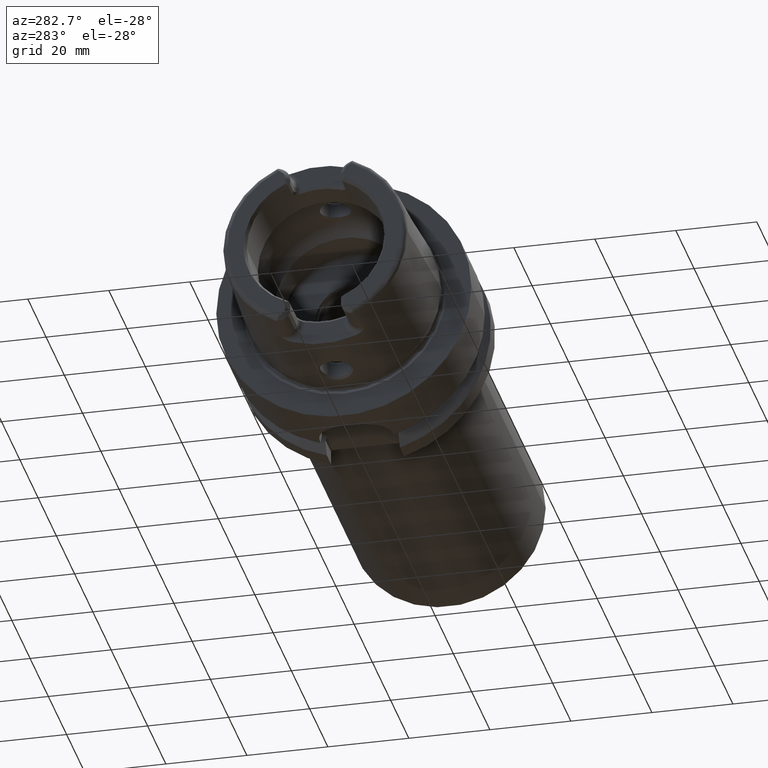
[diagram: clean part render]
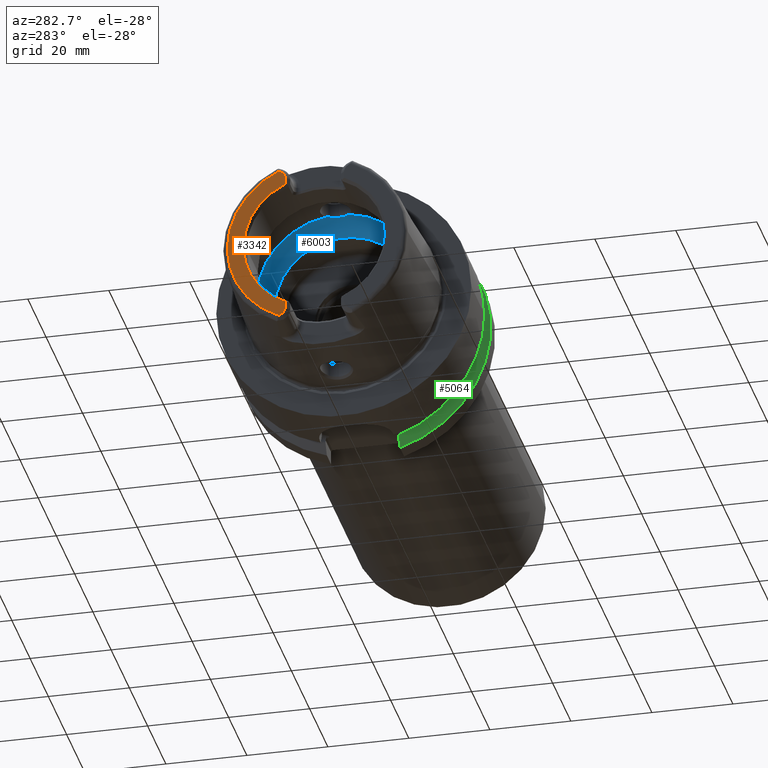
[diagram: same view with three faces highlighted in distinct colors, each labeled with its STEP entity id]
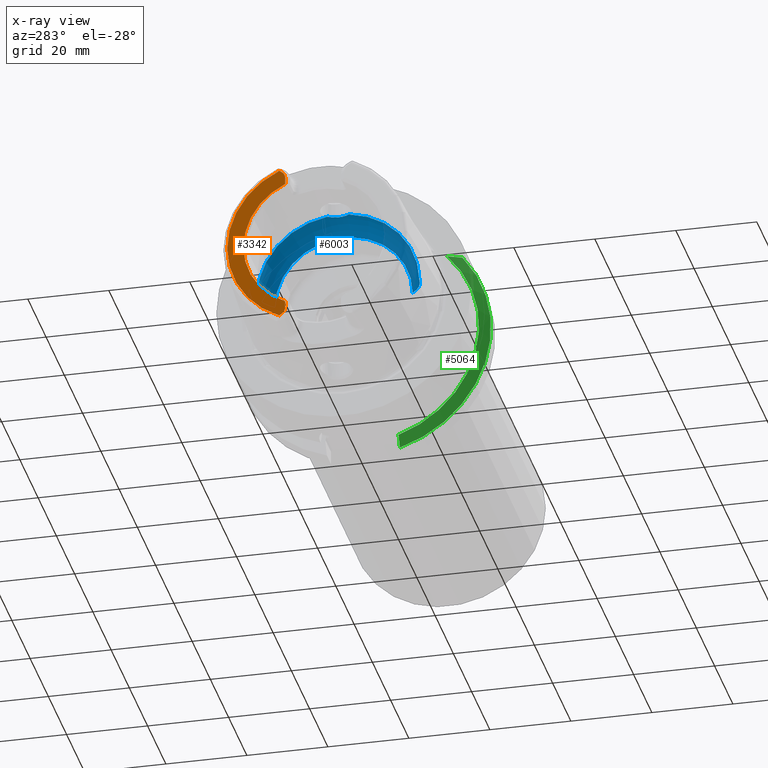
[diagram: x-ray of the same camera — body ghosted, the three highlighted faces saturated]
A machine part, auxiliary view with three faces highlighted in distinct colors.
The next image is the same camera in x-ray (body ghosted, the three faces saturated) — at least one of them is partly hidden behind the body in this view.
Their STEP definitions:

[orange] entity #3342 — the highlighted planar face has unit normal (1, 0, 0).
#215=CARTESIAN_POINT('',(-3.2E1,0.E0,0.E0));
#216=DIRECTION('',(-1.E0,0.E0,0.E0));
#217=DIRECTION('',(0.E0,4.056746540583E-1,9.140175463604E-1));
#218=AXIS2_PLACEMENT_3D('',#215,#216,#217);
#289=DIRECTION('',(0.E0,0.E0,1.E0));
#290=VECTOR('',#289,1.666552168805E0);
#291=CARTESIAN_POINT('',(-3.2E1,7.27E0,-1.767E1));
#292=LINE('',#291,#290);
#293=CARTESIAN_POINT('',(-3.2E1,9.27E0,-1.767E1));
#294=DIRECTION('',(1.E0,0.E0,0.E0));
#295=DIRECTION('',(0.E0,-1.E0,0.E0));
#296=AXIS2_PLACEMENT_3D('',#293,#294,#295);
#298=DIRECTION('',(0.E0,-8.373245684230E-1,5.467061067112E-1));
#299=VECTOR('',#298,6.882400885956E-1);
#300=CARTESIAN_POINT('',(-3.2E1,8.752868121732E0,-1.972091419616E1));
#301=LINE('',#300,#299);
#302=DIRECTION('',(0.E0,-8.373245684230E-1,-5.467061067112E-1));
#303=VECTOR('',#302,6.882400885957E-1);
#304=CARTESIAN_POINT('',(-3.2E1,8.752868121732E0,1.972091419616E1));
#305=LINE('',#304,#303);
#306=CARTESIAN_POINT('',(-3.2E1,9.27E0,1.767E1));
#307=DIRECTION('',(-1.E0,0.E0,0.E0));
#308=DIRECTION('',(0.E0,-1.E0,0.E0));
#309=AXIS2_PLACEMENT_3D('',#306,#307,#308);
#311=DIRECTION('',(0.E0,0.E0,1.E0));
#312=VECTOR('',#311,1.666552168805E0);
#313=CARTESIAN_POINT('',(-3.2E1,7.27E0,1.600344783120E1));
#314=LINE('',#313,#312);
#346=CARTESIAN_POINT('',(-3.2E1,0.E0,0.E0));
#347=DIRECTION('',(1.E0,0.E0,0.E0));
#348=DIRECTION('',(0.E0,4.136004510727E-1,-9.104584926686E-1));
#349=AXIS2_PLACEMENT_3D('',#346,#347,#348);
#2741=CARTESIAN_POINT('',(-3.2E1,7.27E0,1.600344783120E1));
#2742=CARTESIAN_POINT('',(-3.2E1,7.27E0,1.767E1));
#2743=VERTEX_POINT('',#2741);
#2744=VERTEX_POINT('',#2742);
#2745=CARTESIAN_POINT('',(-3.2E1,8.176587786578E0,1.934464913685E1));
#2746=VERTEX_POINT('',#2745);
#2747=CARTESIAN_POINT('',(-3.2E1,8.752868121732E0,1.972091419616E1));
#2748=VERTEX_POINT('',#2747);
#2837=CARTESIAN_POINT('',(-3.2E1,7.27E0,-1.767E1));
#2838=CARTESIAN_POINT('',(-3.2E1,7.27E0,-1.600344783120E1));
#2839=VERTEX_POINT('',#2837);
#2840=VERTEX_POINT('',#2838);
#2841=CARTESIAN_POINT('',(-3.2E1,8.176587786578E0,-1.934464913685E1));
#2842=VERTEX_POINT('',#2841);
#2843=CARTESIAN_POINT('',(-3.2E1,8.752868121732E0,-1.972091419616E1));
#2844=VERTEX_POINT('',#2843);
#3321=CARTESIAN_POINT('',(-3.2E1,0.E0,0.E0));
#3322=DIRECTION('',(1.E0,0.E0,0.E0));
#3323=DIRECTION('',(0.E0,-1.E0,0.E0));
#3324=AXIS2_PLACEMENT_3D('',#3321,#3322,#3323);
#3325=PLANE('',#3324);
#3327=ORIENTED_EDGE('',*,*,#3326,.F.);
#3329=ORIENTED_EDGE('',*,*,#3328,.T.);
#3330=ORIENTED_EDGE('',*,*,#3311,.F.);
#3331=ORIENTED_EDGE('',*,*,#3278,.F.);
#3333=ORIENTED_EDGE('',*,*,#3332,.T.);
#3335=ORIENTED_EDGE('',*,*,#3334,.F.);
#3337=ORIENTED_EDGE('',*,*,#3336,.F.);
#3339=ORIENTED_EDGE('',*,*,#3338,.F.);
#3340=EDGE_LOOP('',(#3327,#3329,#3330,#3331,#3333,#3335,#3337,#3339));
#3341=FACE_OUTER_BOUND('',#3340,.F.);
#3342=ADVANCED_FACE('',(#3341),#3325,.F.);
#219=CIRCLE('',#218,2.157607835286E1);
#297=CIRCLE('',#296,2.E0);
#310=CIRCLE('',#309,2.E0);
#350=CIRCLE('',#349,1.757735026919E1);
#3278=EDGE_CURVE('',#2748,#2844,#219,.T.);
#3311=EDGE_CURVE('',#2844,#2842,#301,.T.);
#3326=EDGE_CURVE('',#2839,#2840,#292,.T.);
#3328=EDGE_CURVE('',#2839,#2842,#297,.T.);
#3332=EDGE_CURVE('',#2748,#2746,#305,.T.);
#3334=EDGE_CURVE('',#2744,#2746,#310,.T.);
#3336=EDGE_CURVE('',#2743,#2744,#314,.T.);
#3338=EDGE_CURVE('',#2840,#2743,#350,.T.);

[blue] entity #6003 — the highlighted toroidal blend (fillet) surface has major radius 12 mm and minor (blend) radius 8 mm.
#2268=CARTESIAN_POINT('',(-5.25E0,0.E0,1.992470689575E1));
#2269=CARTESIAN_POINT('',(-5.25E0,1.634249880127E-1,1.992470689575E1));
#2270=CARTESIAN_POINT('',(-5.271317000323E0,4.905125142286E-1,
1.992366860007E1));
#2271=CARTESIAN_POINT('',(-5.367938073203E0,9.753406287590E-1,
1.991846757388E1));
#2272=CARTESIAN_POINT('',(-5.525913254439E0,1.440181253243E0,1.990841194030E1));
#2273=CARTESIAN_POINT('',(-5.745012466850E0,1.883704211740E0,1.989126222791E1));
#2274=CARTESIAN_POINT('',(-6.017092970824E0,2.289932260455E0,1.986481338490E1));
#2275=CARTESIAN_POINT('',(-6.231037578916E0,2.534045566496E0,1.983915065875E1));
#2276=CARTESIAN_POINT('',(-6.344997998398E0,2.648294615690E0,1.982388800484E1));
#2278=CARTESIAN_POINT('',(-6.344997998398E0,-2.648294615690E0,
1.982388800484E1));
#2279=CARTESIAN_POINT('',(-6.231045843136E0,-2.534053851646E0,
1.983914955193E1));
#2280=CARTESIAN_POINT('',(-6.017093742818E0,-2.289943440357E0,
1.986481395775E1));
#2281=CARTESIAN_POINT('',(-5.744901596897E0,-1.883527876206E0,
1.989127237006E1));
#2282=CARTESIAN_POINT('',(-5.525828432433E0,-1.439963272778E0,
1.990841763195E1));
#2283=CARTESIAN_POINT('',(-5.367908372542E0,-9.752317929729E-1,
1.991846926373E1));
#2284=CARTESIAN_POINT('',(-5.271289109403E0,-4.903031116233E-1,
1.992367002777E1));
#2285=CARTESIAN_POINT('',(-5.25E0,-1.633414179458E-1,1.992470689575E1));
#2286=CARTESIAN_POINT('',(-5.25E0,0.E0,1.992470689575E1));
#2288=CARTESIAN_POINT('',(-1.E-1,0.E0,0.E0));
#2289=DIRECTION('',(1.E0,0.E0,0.E0));
#2290=DIRECTION('',(0.E0,1.E0,0.E0));
#2291=AXIS2_PLACEMENT_3D('',#2288,#2289,#2290);
#2313=CARTESIAN_POINT('',(-6.344997998398E0,0.E0,0.E0));
#2314=DIRECTION('',(1.E0,0.E0,0.E0));
#2315=DIRECTION('',(0.E0,1.E0,0.E0));
#2316=AXIS2_PLACEMENT_3D('',#2313,#2314,#2315);
#2318=CARTESIAN_POINT('',(-6.344997998398E0,0.E0,0.E0));
#2319=DIRECTION('',(1.E0,0.E0,0.E0));
#2320=DIRECTION('',(0.E0,-1.324147307845E-1,9.911944002421E-1));
#2321=AXIS2_PLACEMENT_3D('',#2318,#2319,#2320);
#2411=CARTESIAN_POINT('',(-6.344997998398E0,1.2E1,0.E0));
#2412=DIRECTION('',(0.E0,0.E0,1.E0));
#2413=DIRECTION('',(7.806247497998E-1,6.25E-1,0.E0));
#2414=AXIS2_PLACEMENT_3D('',#2411,#2412,#2413);
#2421=CARTESIAN_POINT('',(-6.344997998398E0,-1.2E1,0.E0));
#2422=DIRECTION('',(0.E0,0.E0,-1.E0));
#2423=DIRECTION('',(7.806247497998E-1,-6.25E-1,0.E0));
#2424=AXIS2_PLACEMENT_3D('',#2421,#2422,#2423);
#2690=CARTESIAN_POINT('',(-1.E-1,1.7E1,0.E0));
#2691=VERTEX_POINT('',#2690);
#2692=CARTESIAN_POINT('',(-6.344997998398E0,2.E1,0.E0));
#2693=VERTEX_POINT('',#2692);
#2702=CARTESIAN_POINT('',(-1.E-1,-1.7E1,0.E0));
#2703=VERTEX_POINT('',#2702);
#2704=CARTESIAN_POINT('',(-6.344997998398E0,-2.E1,0.E0));
#2705=VERTEX_POINT('',#2704);
#2873=VERTEX_POINT('',#2268);
#2874=VERTEX_POINT('',#2276);
#2875=VERTEX_POINT('',#2278);
#5984=CARTESIAN_POINT('',(-6.344997998398E0,0.E0,0.E0));
#5985=DIRECTION('',(1.E0,0.E0,0.E0));
#5986=DIRECTION('',(0.E0,-1.E0,0.E0));
#5987=AXIS2_PLACEMENT_3D('',#5984,#5985,#5986);
#5988=TOROIDAL_SURFACE('',#5987,1.2E1,8.E0);
#5989=ORIENTED_EDGE('',*,*,#5961,.F.);
#5990=ORIENTED_EDGE('',*,*,#5727,.F.);
#5992=ORIENTED_EDGE('',*,*,#5991,.T.);
#5994=ORIENTED_EDGE('',*,*,#5993,.F.);
#5996=ORIENTED_EDGE('',*,*,#5995,.F.);
#5998=ORIENTED_EDGE('',*,*,#5997,.T.);
#6000=ORIENTED_EDGE('',*,*,#5999,.T.);
#6001=EDGE_LOOP('',(#5989,#5990,#5992,#5994,#5996,#5998,#6000));
#6002=FACE_OUTER_BOUND('',#6001,.F.);
#6003=ADVANCED_FACE('',(#6002),#5988,.F.);
#2277=B_SPLINE_CURVE_WITH_KNOTS('',3,(#2268,#2269,#2270,#2271,#2272,#2273,#2274,
#2275,#2276),.UNSPECIFIED.,.F.,.F.,(4,1,1,1,1,1,4),(0.E0,1.666666666667E-1,
3.333333333333E-1,5.E-1,6.666666666667E-1,8.333333333333E-1,1.E0),
.UNSPECIFIED.);
#2287=B_SPLINE_CURVE_WITH_KNOTS('',3,(#2278,#2279,#2280,#2281,#2282,#2283,#2284,
#2285,#2286),.UNSPECIFIED.,.F.,.F.,(4,1,1,1,1,1,4),(0.E0,1.666666666667E-1,
3.333333333333E-1,5.E-1,6.666666666667E-1,8.333333333333E-1,1.E0),
.UNSPECIFIED.);
#2292=CIRCLE('',#2291,1.7E1);
#2317=CIRCLE('',#2316,2.E1);
#2322=CIRCLE('',#2321,2.E1);
#2415=CIRCLE('',#2414,8.E0);
#2425=CIRCLE('',#2424,8.E0);
#5727=EDGE_CURVE('',#2875,#2873,#2287,.T.);
#5961=EDGE_CURVE('',#2873,#2874,#2277,.T.);
#5991=EDGE_CURVE('',#2875,#2705,#2322,.T.);
#5993=EDGE_CURVE('',#2703,#2705,#2425,.T.);
#5995=EDGE_CURVE('',#2691,#2703,#2292,.T.);
#5997=EDGE_CURVE('',#2691,#2693,#2415,.T.);
#5999=EDGE_CURVE('',#2693,#2874,#2317,.T.);

[green] entity #5064 — the highlighted conical surface has half-angle 60 deg.
#1797=CARTESIAN_POINT('',(1.9875E1,-2.100115501712E1,1.985E1));
#1798=CARTESIAN_POINT('',(2.002615778083E1,-2.136140971936E1,1.985E1));
#1799=CARTESIAN_POINT('',(2.033884699379E1,-2.209786160622E1,1.985E1));
#1800=CARTESIAN_POINT('',(2.083744118214E1,-2.324577082409E1,1.985E1));
#1801=CARTESIAN_POINT('',(2.119367380645E1,-2.404863363206E1,1.985E1));
#1802=CARTESIAN_POINT('',(2.137749907476E1,-2.445868966237E1,1.985E1));
#1804=CARTESIAN_POINT('',(2.137749907476E1,0.E0,0.E0));
#1805=DIRECTION('',(1.E0,0.E0,0.E0));
#1806=DIRECTION('',(0.E0,-7.764663384879E-1,6.301587301587E-1));
#1807=AXIS2_PLACEMENT_3D('',#1804,#1805,#1806);
#1809=CARTESIAN_POINT('',(1.9875E1,-9.0175E0,-2.745461174016E1));
#1810=CARTESIAN_POINT('',(2.003399901875E1,-9.0175E0,-2.774448053791E1));
#1811=CARTESIAN_POINT('',(2.035729051151E1,-9.0175E0,-2.833297398512E1));
#1812=CARTESIAN_POINT('',(2.085789481016E1,-9.0175E0,-2.924158789478E1));
#1813=CARTESIAN_POINT('',(2.120250873981E1,-9.0175E0,-2.986536377611E1));
#1814=CARTESIAN_POINT('',(2.137749907476E1,-9.0175E0,-3.018169467989E1));
#1816=CARTESIAN_POINT('',(1.9875E1,0.E0,0.E0));
#1817=DIRECTION('',(-1.E0,0.E0,0.E0));
#1818=DIRECTION('',(0.E0,-3.120501867909E-1,-9.500656192726E-1));
#1819=AXIS2_PLACEMENT_3D('',#1816,#1817,#1818);
#3053=CARTESIAN_POINT('',(1.9875E1,-9.0175E0,-2.745461174016E1));
#3055=VERTEX_POINT('',#3053);
#3058=VERTEX_POINT('',#1814);
#3065=CARTESIAN_POINT('',(2.137749907476E1,-2.445868966237E1,1.985E1));
#3067=VERTEX_POINT('',#3065);
#3081=CARTESIAN_POINT('',(1.9875E1,-2.100115501712E1,1.985E1));
#3083=VERTEX_POINT('',#3081);
#5052=CARTESIAN_POINT('',(2.062624953738E1,0.E0,0.E0));
#5053=DIRECTION('',(1.E0,0.E0,0.E0));
#5054=DIRECTION('',(0.E0,-1.E0,0.E0));
#5055=AXIS2_PLACEMENT_3D('',#5052,#5053,#5054);
#5056=CONICAL_SURFACE('',#5055,3.019879763210E1,6.E1);
#5057=ORIENTED_EDGE('',*,*,#4933,.T.);
#5058=ORIENTED_EDGE('',*,*,#4846,.T.);
#5060=ORIENTED_EDGE('',*,*,#5059,.F.);
#5061=ORIENTED_EDGE('',*,*,#5019,.T.);
#5062=EDGE_LOOP('',(#5057,#5058,#5060,#5061));
#5063=FACE_OUTER_BOUND('',#5062,.F.);
#5064=ADVANCED_FACE('',(#5063),#5056,.T.);
#1803=B_SPLINE_CURVE_WITH_KNOTS('',3,(#1797,#1798,#1799,#1800,#1801,#1802),
.UNSPECIFIED.,.F.,.F.,(4,1,1,4),(0.E0,3.333333333333E-1,6.666666666667E-1,1.E0),
.UNSPECIFIED.);
#1808=CIRCLE('',#1807,3.15E1);
#1815=B_SPLINE_CURVE_WITH_KNOTS('',3,(#1809,#1810,#1811,#1812,#1813,#1814),
.UNSPECIFIED.,.F.,.F.,(4,1,1,4),(0.E0,3.333333333333E-1,6.666666666667E-1,1.E0),
.UNSPECIFIED.);
#1820=CIRCLE('',#1819,2.889759526419E1);
#4846=EDGE_CURVE('',#3067,#3058,#1808,.T.);
#4933=EDGE_CURVE('',#3083,#3067,#1803,.T.);
#5019=EDGE_CURVE('',#3055,#3083,#1820,.T.);
#5059=EDGE_CURVE('',#3055,#3058,#1815,.T.);